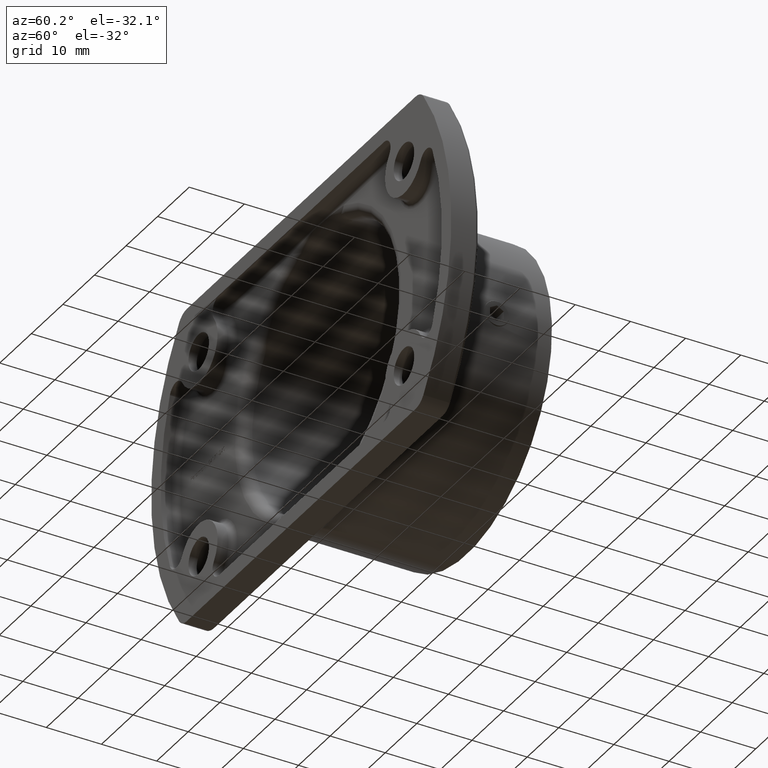
[diagram: clean part render]
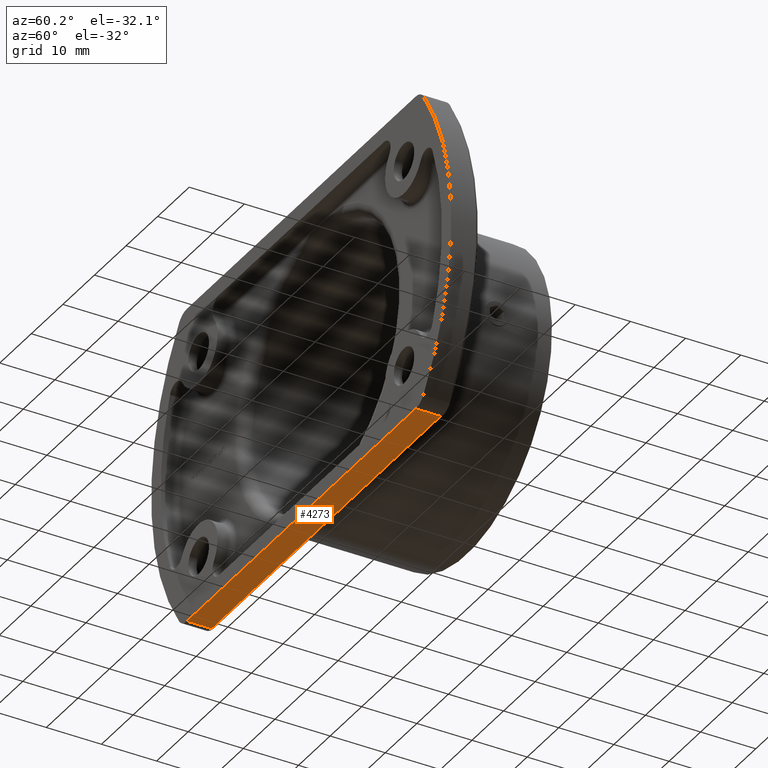
[diagram: same view with one face highlighted and labeled with its STEP entity id]
A machine part, auxiliary view. The second image highlights one B-rep face of the part: STEP entity #4273.
In plain terms, the highlighted planar face has unit normal (0, 0, -1).
Its self-contained STEP definition (entity closure, byte-faithful):
#15 = CARTESIAN_POINT ( 'NONE',  ( -5.361902647381767473, 4.499999999999999112, -29.00000000000000000 ) ) ;
#149 = CARTESIAN_POINT ( 'NONE',  ( -36.22873534441392707, 4.500000000000000888, -29.00000000000000000 ) ) ;
#184 = VECTOR ( 'NONE', #13388, 1000.000000000000000 ) ;
#398 = CARTESIAN_POINT ( 'NONE',  ( -37.74918299781055708, 4.500000000000000888, -29.00000000000000000 ) ) ;
#472 = VECTOR ( 'NONE', #7244, 1000.000000000000000 ) ;
#573 = ORIENTED_EDGE ( 'NONE', *, *, #1935, .T. ) ;
#575 = CARTESIAN_POINT ( 'NONE',  ( -37.74918299781055708, 0.000000000000000000, -29.00000000000000000 ) ) ;
#658 = AXIS2_PLACEMENT_3D ( 'NONE', #6220, #12290, #923 ) ;
#676 = LINE ( 'NONE', #2010, #184 ) ;
#923 = DIRECTION ( 'NONE',  ( -1.000000000000000000, 0.000000000000000000, -0.000000000000000000 ) ) ;
#990 = EDGE_CURVE ( 'NONE', #1809, #10252, #4602, .T. ) ;
#1058 = CARTESIAN_POINT ( 'NONE',  ( -0.8938018294104435046, 4.550509659646812644, -29.00000000000000355 ) ) ;
#1809 = VERTEX_POINT ( 'NONE', #3645 ) ;
#1822 = EDGE_CURVE ( 'NONE', #4632, #6581, #7854, .T. ) ;
#1935 = EDGE_CURVE ( 'NONE', #3494, #8711, #13220, .T. ) ;
#2010 = CARTESIAN_POINT ( 'NONE',  ( 36.22873534441392707, 0.000000000000000000, -29.00000000000000000 ) ) ;
#2155 = VECTOR ( 'NONE', #9901, 1000.000000000000000 ) ;
#2756 = ORIENTED_EDGE ( 'NONE', *, *, #1822, .F. ) ;
#3055 = ORIENTED_EDGE ( 'NONE', *, *, #990, .T. ) ;
#3140 = B_SPLINE_CURVE_WITH_KNOTS ( 'NONE', 3,
 ( #15, #3301, #12475, #7278, #1058, #8335, #5220, #5474, #12857, #6441 ),
 .UNSPECIFIED., .F., .F.,
 ( 4, 2, 2, 2, 4 ),
 ( 0.000000000000000000, 0.002681022986512905139, 0.005362045973025810278, 0.008043068959538716284, 0.01072409194605162056 ),
 .UNSPECIFIED. ) ;
#3150 = CARTESIAN_POINT ( 'NONE',  ( -5.361902647381767473, 4.499999999999999112, -29.00000000000000000 ) ) ;
#3301 = CARTESIAN_POINT ( 'NONE',  ( -4.468194164121250367, 4.500000000000000000, -28.99999999999999645 ) ) ;
#3470 = EDGE_CURVE ( 'NONE', #10252, #6581, #676, .T. ) ;
#3494 = VERTEX_POINT ( 'NONE', #149 ) ;
#3537 = CARTESIAN_POINT ( 'NONE',  ( 36.22873534441391996, 4.500000000000000888, -29.00000000000000000 ) ) ;
#3645 = CARTESIAN_POINT ( 'NONE',  ( 5.361902647381800335, 4.500000000000000888, -29.00000000000000000 ) ) ;
#3796 = PLANE ( 'NONE',  #658 ) ;
#4273 = ADVANCED_FACE ( 'NONE', ( #11430 ), #3796, .T. ) ;
#4598 = DIRECTION ( 'NONE',  ( 1.000000000000000000, 0.000000000000000000, 0.000000000000000000 ) ) ;
#4602 = LINE ( 'NONE', #10039, #6724 ) ;
#4632 = VERTEX_POINT ( 'NONE', #9989 ) ;
#5220 = CARTESIAN_POINT ( 'NONE',  ( 1.787304453876482846, 4.540830374293584271, -29.00000000000000355 ) ) ;
#5474 = CARTESIAN_POINT ( 'NONE',  ( 3.574554278062565427, 4.515492101902209399, -29.00000000000000711 ) ) ;
#5538 = ORIENTED_EDGE ( 'NONE', *, *, #3470, .T. ) ;
#5871 = EDGE_LOOP ( 'NONE', ( #3055, #5538, #2756, #9981, #573, #10097 ) ) ;
#6220 = CARTESIAN_POINT ( 'NONE',  ( -37.74918299781055708, 5.000000000000000000, -29.00000000000000000 ) ) ;
#6441 = CARTESIAN_POINT ( 'NONE',  ( 5.361902647381800335, 4.500000000000000888, -29.00000000000000000 ) ) ;
#6581 = VERTEX_POINT ( 'NONE', #9381 ) ;
#6724 = VECTOR ( 'NONE', #13040, 1000.000000000000000 ) ;
#7244 = DIRECTION ( 'NONE',  ( 0.000000000000000000, 1.000000000000000000, 0.000000000000000000 ) ) ;
#7278 = CARTESIAN_POINT ( 'NONE',  ( -1.787425674298771749, 4.540828791152382138, -28.99999999999999289 ) ) ;
#7462 = LINE ( 'NONE', #7468, #472 ) ;
#7468 = CARTESIAN_POINT ( 'NONE',  ( -36.22873534441392707, 4.500000000000000888, -29.00000000000000000 ) ) ;
#7505 = EDGE_CURVE ( 'NONE', #4632, #3494, #7462, .T. ) ;
#7854 = LINE ( 'NONE', #575, #12105 ) ;
#7855 = EDGE_CURVE ( 'NONE', #8711, #1809, #3140, .T. ) ;
#8335 = CARTESIAN_POINT ( 'NONE',  ( 0.8936151266622063272, 4.550510854724413967, -29.00000000000000711 ) ) ;
#8711 = VERTEX_POINT ( 'NONE', #3150 ) ;
#9381 = CARTESIAN_POINT ( 'NONE',  ( 36.22873534441391996, 0.000000000000000000, -29.00000000000000000 ) ) ;
#9901 = DIRECTION ( 'NONE',  ( 1.000000000000000000, -0.000000000000000000, 0.000000000000000000 ) ) ;
#9981 = ORIENTED_EDGE ( 'NONE', *, *, #7505, .T. ) ;
#9989 = CARTESIAN_POINT ( 'NONE',  ( -36.22873534441392707, 0.000000000000000000, -29.00000000000000000 ) ) ;
#10039 = CARTESIAN_POINT ( 'NONE',  ( -37.74918299781055708, 4.500000000000000888, -29.00000000000000000 ) ) ;
#10097 = ORIENTED_EDGE ( 'NONE', *, *, #7855, .T. ) ;
#10252 = VERTEX_POINT ( 'NONE', #3537 ) ;
#11430 = FACE_OUTER_BOUND ( 'NONE', #5871, .T. ) ;
#12105 = VECTOR ( 'NONE', #4598, 1000.000000000000000 ) ;
#12290 = DIRECTION ( 'NONE',  ( 0.000000000000000000, 0.000000000000000000, -1.000000000000000000 ) ) ;
#12475 = CARTESIAN_POINT ( 'NONE',  ( -3.574621116500801499, 4.515491018873175832, -29.00000000000000355 ) ) ;
#12857 = CARTESIAN_POINT ( 'NONE',  ( 4.468150936579076138, 4.500000000000000000, -29.00000000000000355 ) ) ;
#13040 = DIRECTION ( 'NONE',  ( 1.000000000000000000, -0.000000000000000000, 0.000000000000000000 ) ) ;
#13220 = LINE ( 'NONE', #398, #2155 ) ;
#13388 = DIRECTION ( 'NONE',  ( -0.000000000000000000, -1.000000000000000000, -0.000000000000000000 ) ) ;